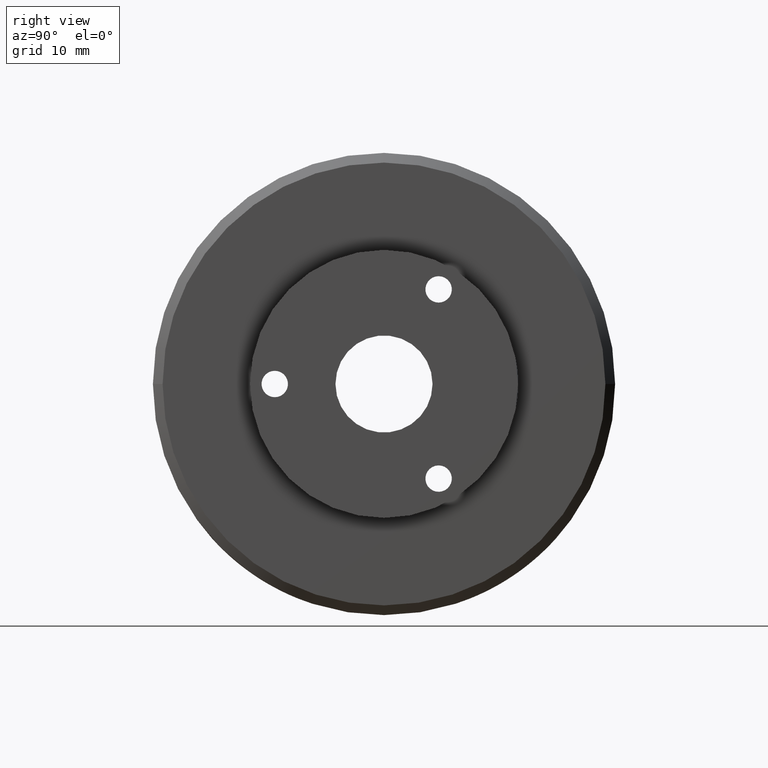
[diagram: clean part render]
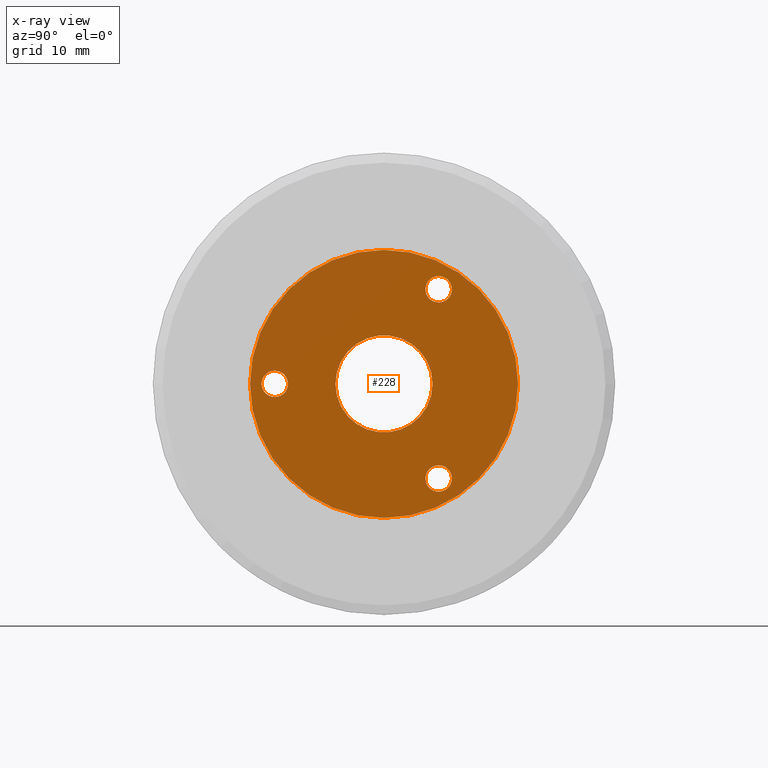
[diagram: x-ray — body ghosted, one internal face saturated and labeled with its STEP entity id]
A machine part, right view, then the same camera in x-ray: the body is ghosted and one INTERNAL B-rep face — a face not visible from any outside direction — is saturated and labeled: STEP entity #228.
In plain terms, the highlighted planar face has unit normal (1, 0, 0).
Its self-contained STEP definition (entity closure, byte-faithful):
#228 = ADVANCED_FACE ( 'NONE', ( #2056, #2059, #2067, #2069, #2064 ), #538, .T. ) ;
#532 = DIRECTION ( 'NONE',  ( 0.0000000000000000000, 0.0000000000000000000, -1.000000000000000000 ) ) ;
#533 = DIRECTION ( 'NONE',  ( 1.000000000000000000, 0.0000000000000000000, 0.0000000000000000000 ) ) ;
#535 = CARTESIAN_POINT ( 'NONE',  ( -0.002500000000000000100, -1.293132247478720600E-017, 0.0000000000000000000 ) ) ;
#538 = PLANE ( 'NONE',  #1837 ) ;
#702 = VERTEX_POINT ( 'NONE', #1455 ) ;
#713 = VERTEX_POINT ( 'NONE', #1466 ) ;
#824 = VERTEX_POINT ( 'NONE', #1546 ) ;
#842 = VERTEX_POINT ( 'NONE', #1558 ) ;
#849 = CARTESIAN_POINT ( 'NONE',  ( -0.002500000000000041700, 0.2812500000000001700, 0.4871392896287468100 ) ) ;
#856 = VERTEX_POINT ( 'NONE', #1566 ) ;
#867 = VERTEX_POINT ( 'NONE', #1571 ) ;
#871 = VERTEX_POINT ( 'NONE', #1573 ) ;
#881 = VERTEX_POINT ( 'NONE', #1580 ) ;
#903 = VERTEX_POINT ( 'NONE', #1593 ) ;
#915 = VERTEX_POINT ( 'NONE', #1601 ) ;
#930 = DIRECTION ( 'NONE',  ( 1.000000000000000000, 0.0000000000000000000, 0.0000000000000000000 ) ) ;
#958 = DIRECTION ( 'NONE',  ( -1.000000000000000000, -0.0000000000000000000, -0.0000000000000000000 ) ) ;
#1049 = DIRECTION ( 'NONE',  ( 0.0000000000000000000, 0.0000000000000000000, -1.000000000000000000 ) ) ;
#1180 = CARTESIAN_POINT ( 'NONE',  ( -0.002500000000000000100, -1.293132247478720600E-017, 0.0000000000000000000 ) ) ;
#1196 = DIRECTION ( 'NONE',  ( 0.0000000000000000000, 0.0000000000000000000, -1.000000000000000000 ) ) ;
#1455 = CARTESIAN_POINT ( 'NONE',  ( -0.002500000000000000100, -1.293132247478720600E-017, -0.6899999999999996100 ) ) ;
#1466 = CARTESIAN_POINT ( 'NONE',  ( -0.002500000000000000100, 7.156930666638012400E-017, 0.6899999999999996100 ) ) ;
#1546 = CARTESIAN_POINT ( 'NONE',  ( -0.002500000000000041700, 0.2812500000000001700, 0.4191392896287471400 ) ) ;
#1558 = CARTESIAN_POINT ( 'NONE',  ( -0.002500000000000041700, 0.2812500000000001700, -0.5551392896287464800 ) ) ;
#1566 = CARTESIAN_POINT ( 'NONE',  ( -0.002500000000000000100, 0.2500000000000000000, 0.0000000000000000000 ) ) ;
#1571 = CARTESIAN_POINT ( 'NONE',  ( -0.002500000000000000100, -0.2500000000000000000, 3.061616997868383600E-017 ) ) ;
#1573 = CARTESIAN_POINT ( 'NONE',  ( -0.002500000000000041700, 0.2812500000000001700, 0.5551392896287464800 ) ) ;
#1580 = CARTESIAN_POINT ( 'NONE',  ( -0.002500000000000041700, 0.2812500000000001700, -0.4191392896287471400 ) ) ;
#1593 = CARTESIAN_POINT ( 'NONE',  ( -0.002500000000000041700, -0.5625000000000000000, 0.06799999999999949100 ) ) ;
#1601 = CARTESIAN_POINT ( 'NONE',  ( -0.002500000000000041700, -0.5625000000000000000, -0.06799999999999989400 ) ) ;
#1698 = EDGE_CURVE ( 'NONE', #713, #702, #2507, .T. ) ;
#1768 = EDGE_CURVE ( 'NONE', #915, #903, #2594, .T. ) ;
#1774 = EDGE_CURVE ( 'NONE', #842, #881, #2602, .T. ) ;
#1776 = EDGE_CURVE ( 'NONE', #824, #871, #2605, .T. ) ;
#1780 = EDGE_CURVE ( 'NONE', #867, #856, #2611, .T. ) ;
#1793 = EDGE_CURVE ( 'NONE', #856, #867, #2626, .T. ) ;
#1798 = EDGE_CURVE ( 'NONE', #903, #915, #2630, .T. ) ;
#1800 = EDGE_CURVE ( 'NONE', #881, #842, #2632, .T. ) ;
#1802 = EDGE_CURVE ( 'NONE', #871, #824, #2633, .T. ) ;
#1830 = EDGE_CURVE ( 'NONE', #702, #713, #2655, .T. ) ;
#1837 = AXIS2_PLACEMENT_3D ( 'NONE', #535, #533, #532 ) ;
#2056 = FACE_BOUND ( 'NONE', #2889, .T. ) ;
#2059 = FACE_OUTER_BOUND ( 'NONE', #2892, .T. ) ;
#2064 = FACE_BOUND ( 'NONE', #2895, .T. ) ;
#2067 = FACE_BOUND ( 'NONE', #2893, .T. ) ;
#2069 = FACE_BOUND ( 'NONE', #2894, .T. ) ;
#2361 = AXIS2_PLACEMENT_3D ( 'NONE', #3443, #3442, #3441 ) ;
#2377 = AXIS2_PLACEMENT_3D ( 'NONE', #3642, #3655, #3656 ) ;
#2386 = AXIS2_PLACEMENT_3D ( 'NONE', #3488, #3487, #3496 ) ;
#2389 = AXIS2_PLACEMENT_3D ( 'NONE', #3635, #3643, #3619 ) ;
#2390 = AXIS2_PLACEMENT_3D ( 'NONE', #3630, #3644, #3636 ) ;
#2395 = AXIS2_PLACEMENT_3D ( 'NONE', #2831, #2828, #2813 ) ;
#2400 = AXIS2_PLACEMENT_3D ( 'NONE', #2852, #2811, #2808 ) ;
#2402 = AXIS2_PLACEMENT_3D ( 'NONE', #2856, #2814, #2843 ) ;
#2404 = AXIS2_PLACEMENT_3D ( 'NONE', #849, #958, #1196 ) ;
#2423 = AXIS2_PLACEMENT_3D ( 'NONE', #1180, #930, #1049 ) ;
#2507 = CIRCLE ( 'NONE', #2361, 0.6899999999999996100 ) ;
#2594 = CIRCLE ( 'NONE', #2386, 0.06799999999999968600 ) ;
#2602 = CIRCLE ( 'NONE', #2389, 0.06799999999999965800 ) ;
#2605 = CIRCLE ( 'NONE', #2377, 0.06799999999999965800 ) ;
#2611 = CIRCLE ( 'NONE', #2390, 0.2500000000000000000 ) ;
#2626 = CIRCLE ( 'NONE', #2395, 0.2500000000000000000 ) ;
#2630 = CIRCLE ( 'NONE', #2400, 0.06799999999999968600 ) ;
#2632 = CIRCLE ( 'NONE', #2402, 0.06799999999999965800 ) ;
#2633 = CIRCLE ( 'NONE', #2404, 0.06799999999999965800 ) ;
#2655 = CIRCLE ( 'NONE', #2423, 0.6899999999999996100 ) ;
#2808 = DIRECTION ( 'NONE',  ( 0.0000000000000000000, 0.0000000000000000000, -1.000000000000000000 ) ) ;
#2811 = DIRECTION ( 'NONE',  ( -1.000000000000000000, -0.0000000000000000000, -0.0000000000000000000 ) ) ;
#2813 = DIRECTION ( 'NONE',  ( 0.0000000000000000000, 0.0000000000000000000, -1.000000000000000000 ) ) ;
#2814 = DIRECTION ( 'NONE',  ( -1.000000000000000000, -0.0000000000000000000, -0.0000000000000000000 ) ) ;
#2828 = DIRECTION ( 'NONE',  ( 1.000000000000000000, 0.0000000000000000000, 0.0000000000000000000 ) ) ;
#2831 = CARTESIAN_POINT ( 'NONE',  ( -0.002500000000000000100, -1.293132247478720600E-017, 0.0000000000000000000 ) ) ;
#2843 = DIRECTION ( 'NONE',  ( 0.0000000000000000000, 0.0000000000000000000, -1.000000000000000000 ) ) ;
#2852 = CARTESIAN_POINT ( 'NONE',  ( -0.002500000000000041700, -0.5625000000000000000, -2.048885995248197700E-016 ) ) ;
#2856 = CARTESIAN_POINT ( 'NONE',  ( -0.002500000000000041700, 0.2812500000000001700, -0.4871392896287468100 ) ) ;
#2889 = EDGE_LOOP ( 'NONE', ( #2966, #2965 ) ) ;
#2892 = EDGE_LOOP ( 'NONE', ( #2964, #2963 ) ) ;
#2893 = EDGE_LOOP ( 'NONE', ( #2962, #2961 ) ) ;
#2894 = EDGE_LOOP ( 'NONE', ( #2960, #2959 ) ) ;
#2895 = EDGE_LOOP ( 'NONE', ( #2958, #2957 ) ) ;
#2957 = ORIENTED_EDGE ( 'NONE', *, *, #1798, .T. ) ;
#2958 = ORIENTED_EDGE ( 'NONE', *, *, #1768, .T. ) ;
#2959 = ORIENTED_EDGE ( 'NONE', *, *, #1802, .T. ) ;
#2960 = ORIENTED_EDGE ( 'NONE', *, *, #1776, .T. ) ;
#2961 = ORIENTED_EDGE ( 'NONE', *, *, #1780, .F. ) ;
#2962 = ORIENTED_EDGE ( 'NONE', *, *, #1793, .F. ) ;
#2963 = ORIENTED_EDGE ( 'NONE', *, *, #1698, .T. ) ;
#2964 = ORIENTED_EDGE ( 'NONE', *, *, #1830, .T. ) ;
#2965 = ORIENTED_EDGE ( 'NONE', *, *, #1800, .T. ) ;
#2966 = ORIENTED_EDGE ( 'NONE', *, *, #1774, .T. ) ;
#3441 = DIRECTION ( 'NONE',  ( 0.0000000000000000000, 0.0000000000000000000, -1.000000000000000000 ) ) ;
#3442 = DIRECTION ( 'NONE',  ( 1.000000000000000000, 0.0000000000000000000, 0.0000000000000000000 ) ) ;
#3443 = CARTESIAN_POINT ( 'NONE',  ( -0.002500000000000000100, -1.293132247478720600E-017, 0.0000000000000000000 ) ) ;
#3487 = DIRECTION ( 'NONE',  ( -1.000000000000000000, -0.0000000000000000000, -0.0000000000000000000 ) ) ;
#3488 = CARTESIAN_POINT ( 'NONE',  ( -0.002500000000000041700, -0.5625000000000000000, -2.048885995248197700E-016 ) ) ;
#3496 = DIRECTION ( 'NONE',  ( 0.0000000000000000000, 0.0000000000000000000, -1.000000000000000000 ) ) ;
#3619 = DIRECTION ( 'NONE',  ( 0.0000000000000000000, 0.0000000000000000000, -1.000000000000000000 ) ) ;
#3630 = CARTESIAN_POINT ( 'NONE',  ( -0.002500000000000000100, -1.293132247478720600E-017, 0.0000000000000000000 ) ) ;
#3635 = CARTESIAN_POINT ( 'NONE',  ( -0.002500000000000041700, 0.2812500000000001700, -0.4871392896287468100 ) ) ;
#3636 = DIRECTION ( 'NONE',  ( 0.0000000000000000000, 0.0000000000000000000, -1.000000000000000000 ) ) ;
#3642 = CARTESIAN_POINT ( 'NONE',  ( -0.002500000000000041700, 0.2812500000000001700, 0.4871392896287468100 ) ) ;
#3643 = DIRECTION ( 'NONE',  ( -1.000000000000000000, -0.0000000000000000000, -0.0000000000000000000 ) ) ;
#3644 = DIRECTION ( 'NONE',  ( 1.000000000000000000, 0.0000000000000000000, 0.0000000000000000000 ) ) ;
#3655 = DIRECTION ( 'NONE',  ( -1.000000000000000000, -0.0000000000000000000, -0.0000000000000000000 ) ) ;
#3656 = DIRECTION ( 'NONE',  ( 0.0000000000000000000, 0.0000000000000000000, -1.000000000000000000 ) ) ;